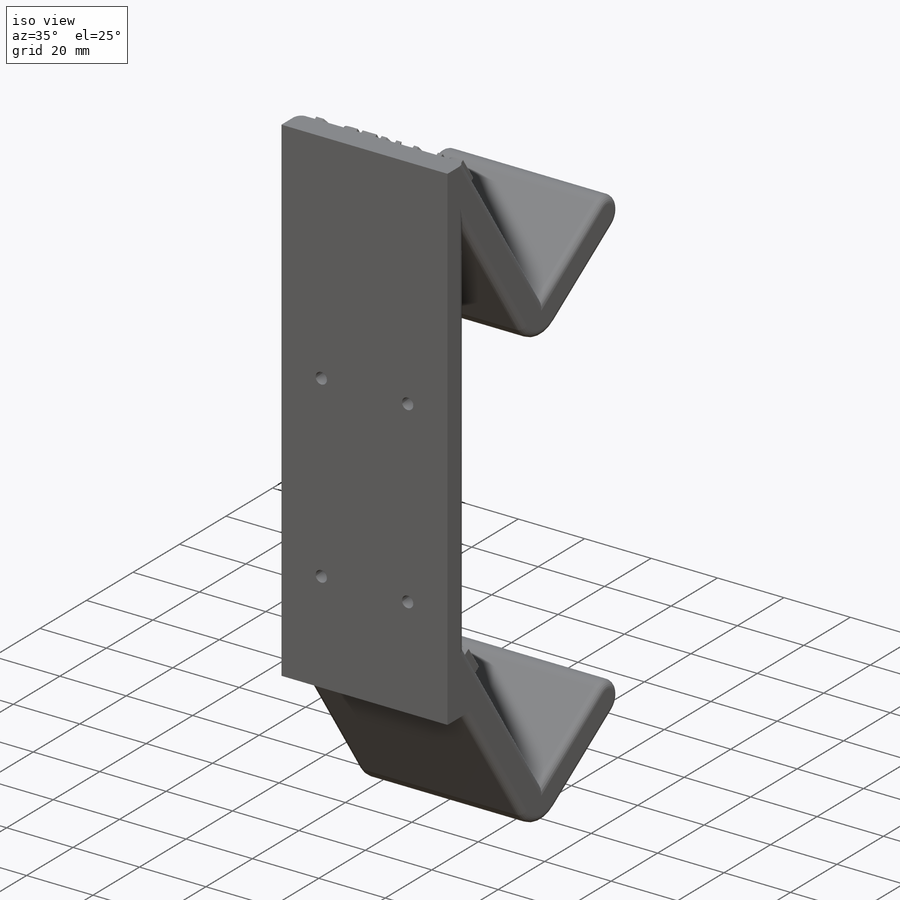
[diagram: iso view]
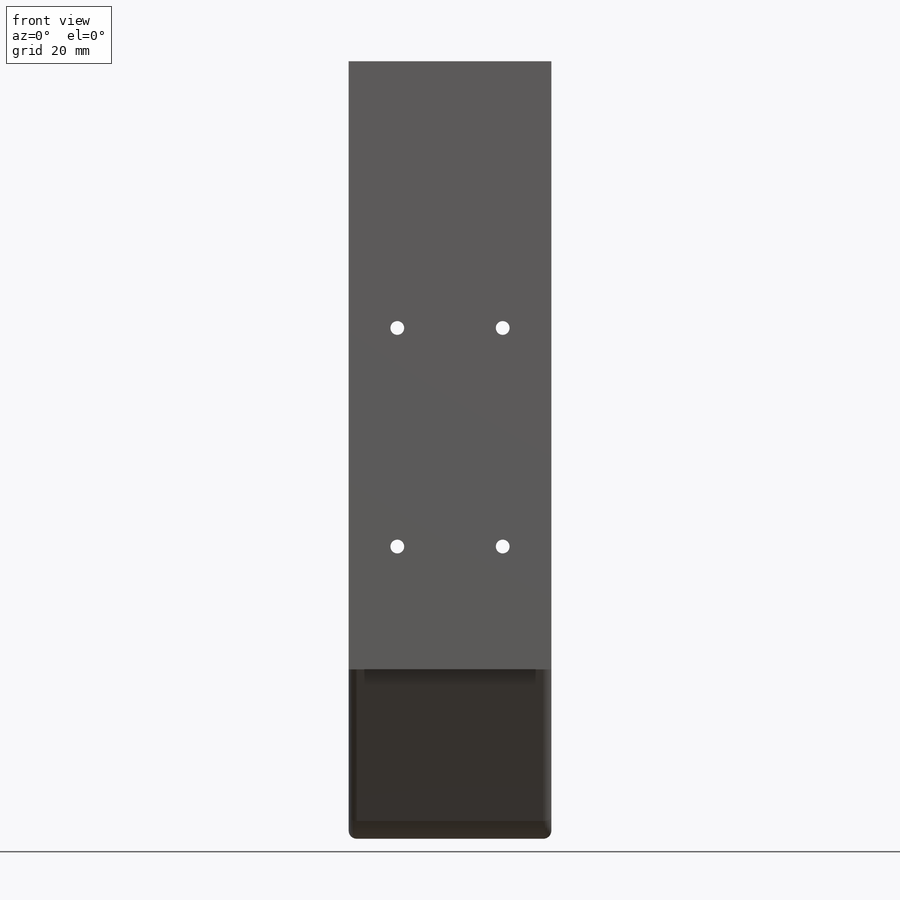
[diagram: front view]
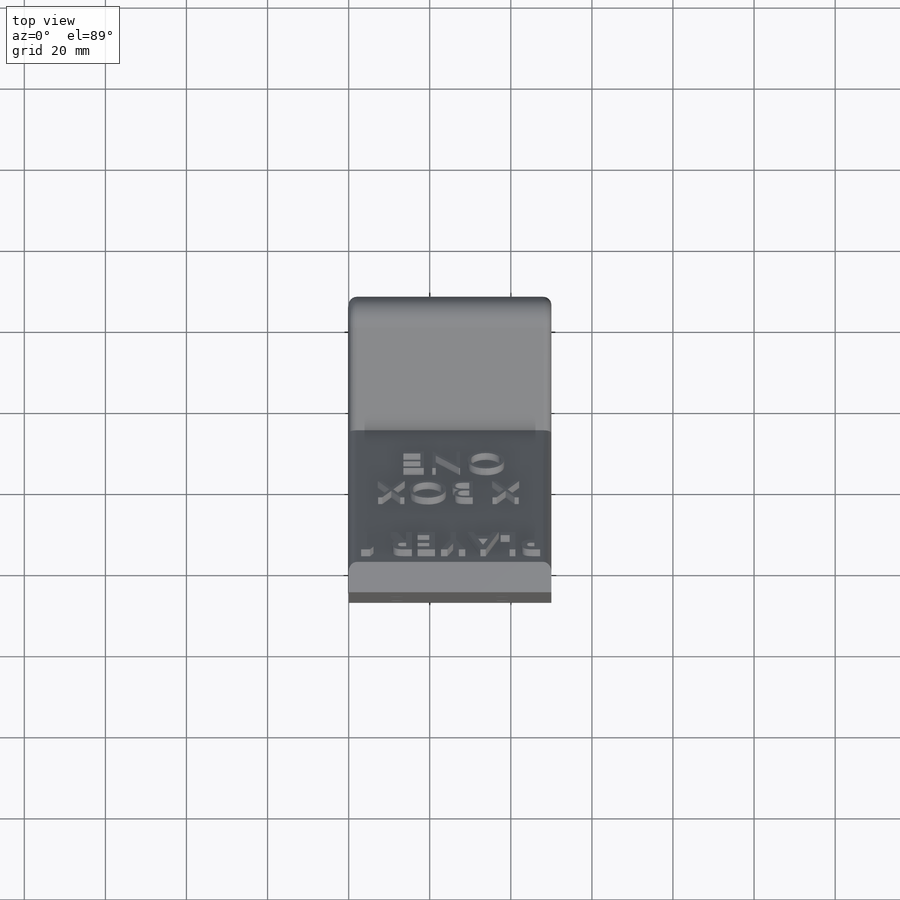
[diagram: top view]
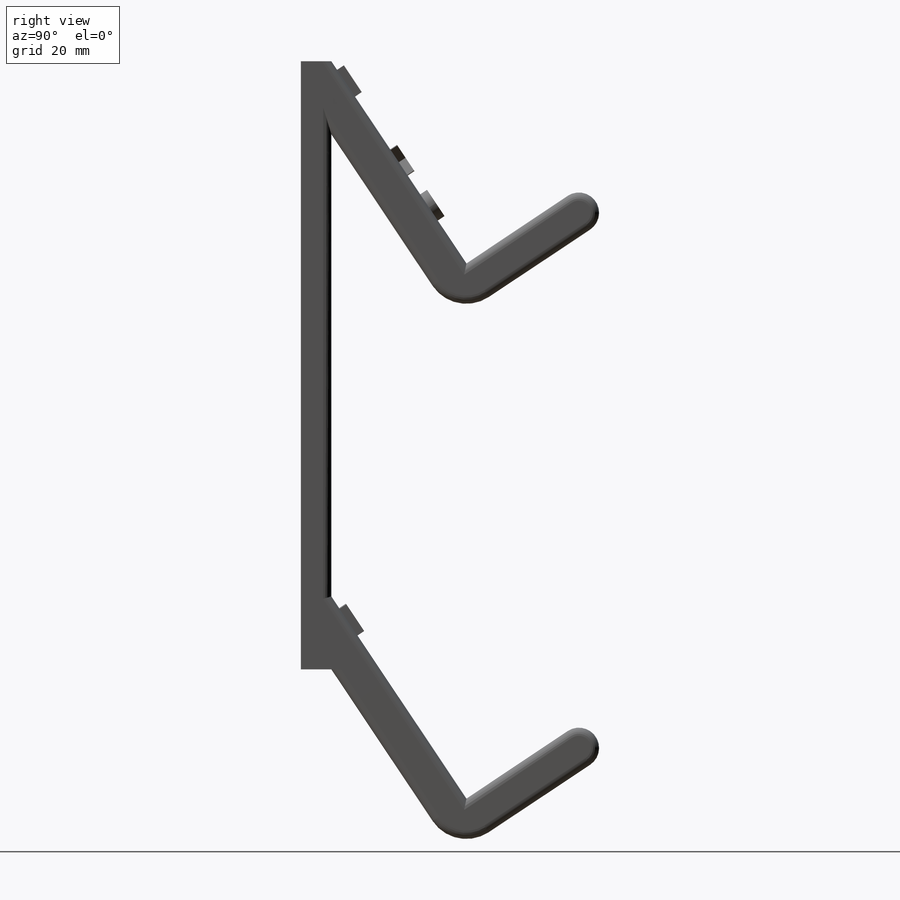
[diagram: right view]
SOLIDWORKS PART (.sldprt)
format: sldprt  version: not decoded by parser v0  size: 624,640 bytes
history: native  units: mm
features: sketch x7, extrude x5, material x1, plane x1, hole x1, fillet x1 (+12 scaffold rows collapsed)
feature tree (28):
  scaffold x12  (default folders/planes/origin — collapsed)
  material  "Material <not specified>"
  sketch  "Sketch1"  dims[c1.D1=~87.223422mm c1.D2=~53.54309mm c2.D1=150.0mm c2.D2=50.0mm c2.D3=0.0mm c2.D4=0.0mm]
  extrude  "Bracket Body "  Depth=7.5mm
  sketch  "Sketch2"  dims[c1.D1=5.0mm c1.D2=10.0mm c1.D7=~188.870186mm c1.D8=10.0mm c1.D10=5.0mm c2.D7=10.0mm c2.D8=10.0mm c2.D1=~18.239128mm c2.D2=10.0mm c2.D3=60.0mm c2.D4=18.0mm c2.D5=10.0mm c2.D6=30.0mm c3.D7=~33.333333mm c4.D7=~146.251011deg c4.D9=30.0mm c4.D11=60.0mm c4.D12=10.0mm c4.D13=~33.722349mm c5.D13=~154.159868deg c6.D13=~34.219432mm c6.D11=~34.219432mm c7.D11=~80.222165deg c8.D11=~33.722349mm c9.D11=0.0deg c10.D11=150.0mm c11.D11=146.25deg c11.D7=~37.392977mm c12.D7=~33.748989deg c12.D8=150.0mm c13.D8=33.75deg c14.D8=150.0mm c14.D7=60.0mm c14.D11=~17.999524mm]
  extrude  "Body Extrusion"  Depth=50mm
  plane  "Plane1"
  hole  "CSK for M3 Flat Head Machine Screw1"  Diameter=3.4mm Depth=7.5mm
  sketch  "Sketch8"  dims[c1.D1=12.0mm c1.D2=28.0mm c1.D3=28.0mm c2.D2=12.0mm c2.D3=12.0mm]
  sketch  "Sketch4"  dims[hole-wizard template sketch: 57 standard entries collapsed; hole parameters kept: c17.Thru Hole Dia.=3.4mm c17.Thru Hole Depth=7.5mm c17.C'Sink Dia.=6.3mm c17.D4=~19.358014mm c17.C'Sink Angle=90.0deg c17.Head Clearance=2.0mm]
  sketch  "Sketch11"
  extrude  "Player 1 Writing "  Depth=2mm
  sketch  "Sketch12"
  extrude  "Player 2 Writing "  Depth=2mm
  sketch  "Sketch13"
  extrude  "Boss-Extrude5"  Depth=2mm
  fillet  "Fillet1"  Radius=2mm
decode coverage: 11 of 14 modeling features carry decoded parameters
note: ~ marks probable driven/reference dimensions
note: suppression state not decoded; provenance and decode notes live in map.json
